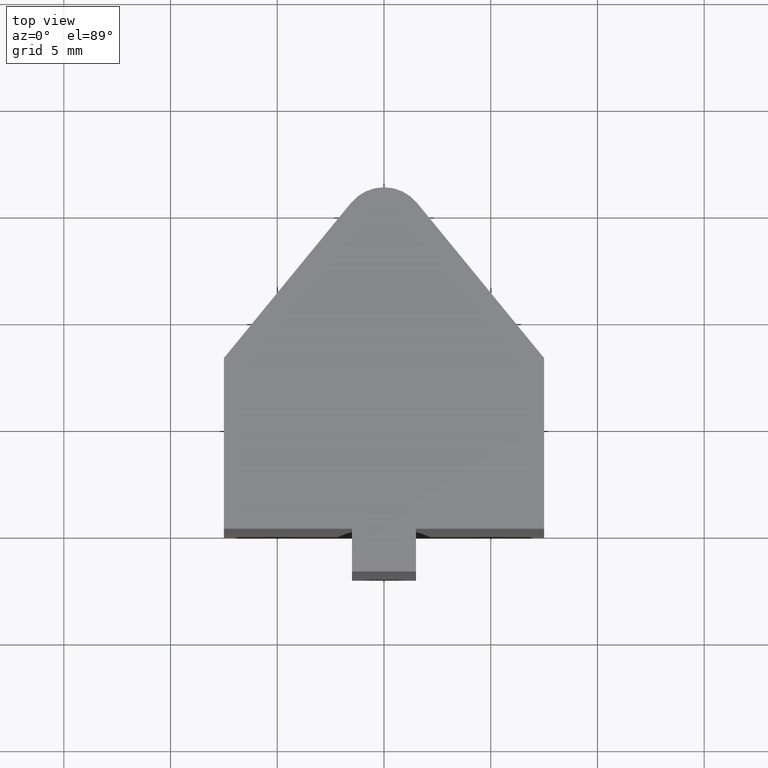
[diagram: clean part render]
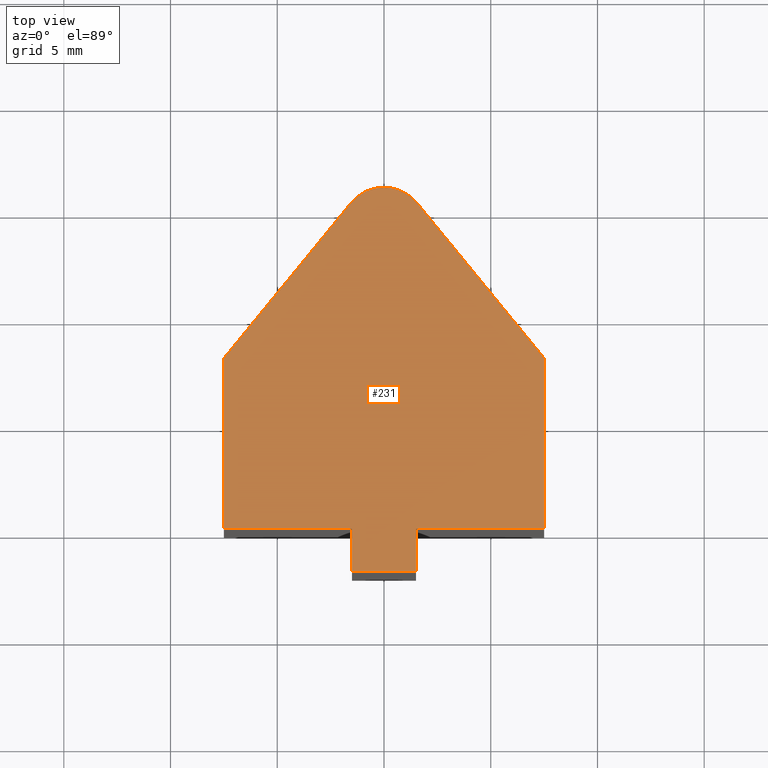
[diagram: same view with one face highlighted and labeled with its STEP entity id]
A machine part, top view. The second image highlights one B-rep face of the part: STEP entity #231.
In plain terms, the highlighted planar face has unit normal (0, 0, 1).
Its self-contained STEP definition (entity closure, byte-faithful):
#28=FACE_OUTER_BOUND('',#40,.T.);
#40=EDGE_LOOP('',(#199,#200,#201,#202,#203,#204,#205,#206,#207,#208));
#42=CIRCLE('',#264,2.);
#52=LINE('',#352,#80);
#55=LINE('',#357,#83);
#57=LINE('',#361,#85);
#59=LINE('',#365,#87);
#61=LINE('',#369,#89);
#63=LINE('',#373,#91);
#66=LINE('',#381,#94);
#68=LINE('',#385,#96);
#70=LINE('',#388,#98);
#80=VECTOR('',#286,10.);
#83=VECTOR('',#291,10.);
#85=VECTOR('',#295,10.);
#87=VECTOR('',#299,10.);
#89=VECTOR('',#303,10.);
#91=VECTOR('',#307,10.);
#94=VECTOR('',#316,10.);
#96=VECTOR('',#320,10.);
#98=VECTOR('',#324,10.);
#109=VERTEX_POINT('',#350);
#110=VERTEX_POINT('',#351);
#111=VERTEX_POINT('',#356);
#112=VERTEX_POINT('',#360);
#113=VERTEX_POINT('',#364);
#114=VERTEX_POINT('',#368);
#115=VERTEX_POINT('',#372);
#116=VERTEX_POINT('',#376);
#117=VERTEX_POINT('',#380);
#118=VERTEX_POINT('',#384);
#129=EDGE_CURVE('',#109,#110,#52,.T.);
#132=EDGE_CURVE('',#110,#111,#55,.T.);
#134=EDGE_CURVE('',#111,#112,#57,.T.);
#136=EDGE_CURVE('',#112,#113,#59,.T.);
#138=EDGE_CURVE('',#113,#114,#61,.T.);
#140=EDGE_CURVE('',#114,#115,#63,.T.);
#142=EDGE_CURVE('',#115,#116,#42,.T.);
#144=EDGE_CURVE('',#116,#117,#66,.T.);
#146=EDGE_CURVE('',#117,#118,#68,.T.);
#148=EDGE_CURVE('',#118,#109,#70,.T.);
#199=ORIENTED_EDGE('',*,*,#129,.F.);
#200=ORIENTED_EDGE('',*,*,#148,.F.);
#201=ORIENTED_EDGE('',*,*,#146,.F.);
#202=ORIENTED_EDGE('',*,*,#144,.F.);
#203=ORIENTED_EDGE('',*,*,#142,.F.);
#204=ORIENTED_EDGE('',*,*,#140,.F.);
#205=ORIENTED_EDGE('',*,*,#138,.F.);
#206=ORIENTED_EDGE('',*,*,#136,.F.);
#207=ORIENTED_EDGE('',*,*,#134,.F.);
#208=ORIENTED_EDGE('',*,*,#132,.F.);
#219=PLANE('',#268);
#231=ADVANCED_FACE('',(#28),#219,.T.);
#264=AXIS2_PLACEMENT_3D('',#377,#311,#312);
#268=AXIS2_PLACEMENT_3D('',#389,#325,#326);
#286=DIRECTION('',(5.55111512312578E-16,-1.,0.));
#291=DIRECTION('',(-1.,0.,0.));
#295=DIRECTION('',(5.55111512312578E-16,1.,0.));
#299=DIRECTION('',(-1.,-1.22464679914736E-16,0.));
#303=DIRECTION('',(0.,1.,0.));
#307=DIRECTION('',(0.633670497075444,0.773603064327023,0.));
#311=DIRECTION('center_axis',(0.,0.,-1.));
#312=DIRECTION('ref_axis',(-0.773603064327022,-0.633670497075445,0.));
#316=DIRECTION('',(0.633670497075444,-0.773603064327023,0.));
#320=DIRECTION('',(0.,-1.,0.));
#324=DIRECTION('',(-1.,1.22464679914736E-16,0.));
#325=DIRECTION('center_axis',(0.,0.,1.));
#326=DIRECTION('ref_axis',(1.,0.,0.));
#350=CARTESIAN_POINT('',(1.5,2.9455496799765E-15,12.5));
#351=CARTESIAN_POINT('',(1.5,-2.,12.5));
#352=CARTESIAN_POINT('',(1.5,2.9455496799765E-15,12.5));
#356=CARTESIAN_POINT('',(-1.5,-2.,12.5));
#357=CARTESIAN_POINT('',(1.5,-2.,12.5));
#360=CARTESIAN_POINT('',(-1.5,2.9455496799765E-15,12.5));
#361=CARTESIAN_POINT('',(-1.5,-2.,12.5));
#364=CARTESIAN_POINT('',(-7.5,2.21076160048808E-15,12.5));
#365=CARTESIAN_POINT('',(-1.5,2.9455496799765E-15,12.5));
#368=CARTESIAN_POINT('',(-7.5,8.,12.5));
#369=CARTESIAN_POINT('',(-7.5,2.21076160048808E-15,12.5));
#372=CARTESIAN_POINT('',(-1.54720612865404,15.2673409941509,12.5));
#373=CARTESIAN_POINT('',(-7.5,8.,12.5));
#376=CARTESIAN_POINT('',(1.54720612865404,15.2673409941509,12.5));
#377=CARTESIAN_POINT('Origin',(0.,14.,12.5));
#380=CARTESIAN_POINT('',(7.5,8.,12.5));
#381=CARTESIAN_POINT('',(1.54720612865404,15.2673409941509,12.5));
#384=CARTESIAN_POINT('',(7.5,2.21076160048808E-15,12.5));
#385=CARTESIAN_POINT('',(7.5,8.,12.5));
#388=CARTESIAN_POINT('',(7.5,2.21076160048808E-15,12.5));
#389=CARTESIAN_POINT('Origin',(-4.33680868994202E-16,5.72386949192024,12.5));